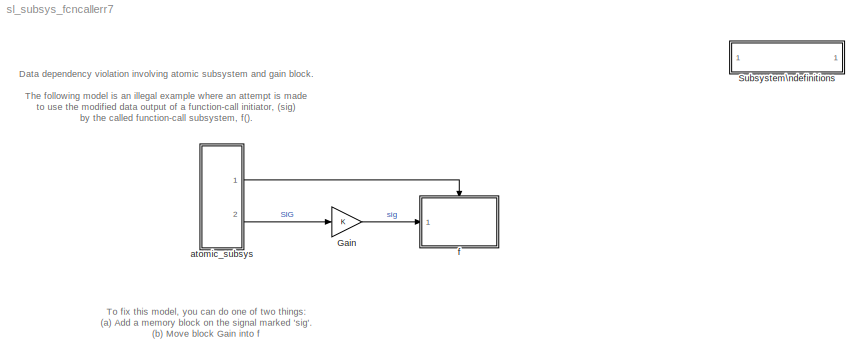
MODEL sl_subsys_fcncallerr7
KIND model
BLOCK [SubSystem]  Subsystem\ndefinitions
  MaskDisplay = disp('Subsystem\\ndefinitions')\n\n
  MaskIconFrame = on
  MaskIconOpaque = on
  MaskIconRotate = none
  MaskIconUnits = autoscale
  MinAlgLoopOccurrences = off
  OpenFcn = helpview([matlabroot,'/toolbox/simulink/simdemos/sl_subsys_definitions.html']);
  Ports = []
  PropExecContextAcrossSSBoundary = on
  RTWSystemCode = Auto
  TreatAsAtomicUnit = off
BLOCK [Gain] Gain
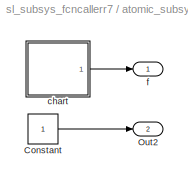
BLOCK [SubSystem] atomic_subsys
  MinAlgLoopOccurrences = off
  Ports = [0, 2]
  PropExecContextAcrossSSBoundary = on
  RTWSystemCode = Auto
  TreatAsAtomicUnit = on
BLOCK [Constant] atomic_subsys/Constant
BLOCK [Outport] atomic_subsys/Out2
  IconDisplay = Port number
  Port = 2
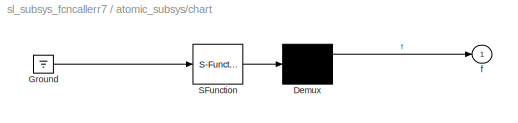
BLOCK [SubSystem] atomic_subsys/chart
  MaskDescription = Stateflow diagram
  MaskDisplay = plot(sf('Private','sfblk','xIcon'),sf('Private','sfblk','yIcon'));text(0.5,0,sf('Private', 'sfblk', 'tIcon'),'HorizontalAl','Center','VerticalAl','Bottom');
  MaskIconFrame = off
  MaskIconOpaque = off
  MaskIconRotate = none
  MaskIconUnits = autoscale
  MaskSelfModifiable = on
  MaskType = Stateflow
  MinAlgLoopOccurrences = off
  Ports = [0, 1]
  PropExecContextAcrossSSBoundary = on
  RTWSystemCode = Auto
  TreatAsAtomicUnit = off
BLOCK [Demux] atomic_subsys/chart/ Demux 
  Outputs = 1
  Ports = [1, 1]
BLOCK [Ground] atomic_subsys/chart/ Ground 
BLOCK [S-Function] atomic_subsys/chart/ SFunction 
  FunctionName = sf_sfun
  PortCounts = [1 1]
  Ports = [1, 1]
  Tag = Stateflow S-Function sl_subsys_fcncallerr7 4
BLOCK [Outport] atomic_subsys/chart/f
  IconDisplay = Port number
BLOCK [Outport] atomic_subsys/f
  IconDisplay = Port number
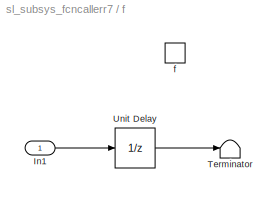
BLOCK [SubSystem] f
  MinAlgLoopOccurrences = off
  Ports = [1, 0, 0, 1]
  PropExecContextAcrossSSBoundary = on
  RTWSystemCode = Auto
  TreatAsAtomicUnit = on
BLOCK [Inport] f/In1
  IconDisplay = Port number
  LatchInput = off
  Port = 1
BLOCK [Terminator] f/Terminator
BLOCK [UnitDelay] f/Unit Delay
  SampleTime = -1
BLOCK [TriggerPort] f/f
  Ports = []
  TriggerType = function-call
ANNOTATION (root): Data dependency violation involving atomic subsystem and gain block.\n\nThe following model is an illegal example where an attempt is made\nto use the modified data output of a function-call initiator, (sig)\nby the called function-call subsystem, f().\n
ANNOTATION (root): To fix this model, you can do one of two things:\n(a) Add a memory block on the signal marked 'sig'.\n(b) Move block Gain into f
LINE Gain:1 -> f:1
LINE atomic_subsys/Constant:1 -> atomic_subsys/Out2:1
LINE atomic_subsys/chart/ Demux :1 -> atomic_subsys/chart/f:1
LINE atomic_subsys/chart/ Ground :1 -> atomic_subsys/chart/ SFunction :1
LINE atomic_subsys/chart/ SFunction :1 -> atomic_subsys/chart/ Demux :1
LINE atomic_subsys/chart:1 -> atomic_subsys/f:1
LINE atomic_subsys:1 -> f:trigger
LINE atomic_subsys:2 -> Gain:1
LINE f/In1:1 -> f/Unit Delay:1
LINE f/Unit Delay:1 -> f/Terminator:1
CHART atomic_subsys/chart states=2 transitions=3
  STATE_LABEL 'one/\\nentry: f;'
  STATE_LABEL 'two/\\nentry: f;'
